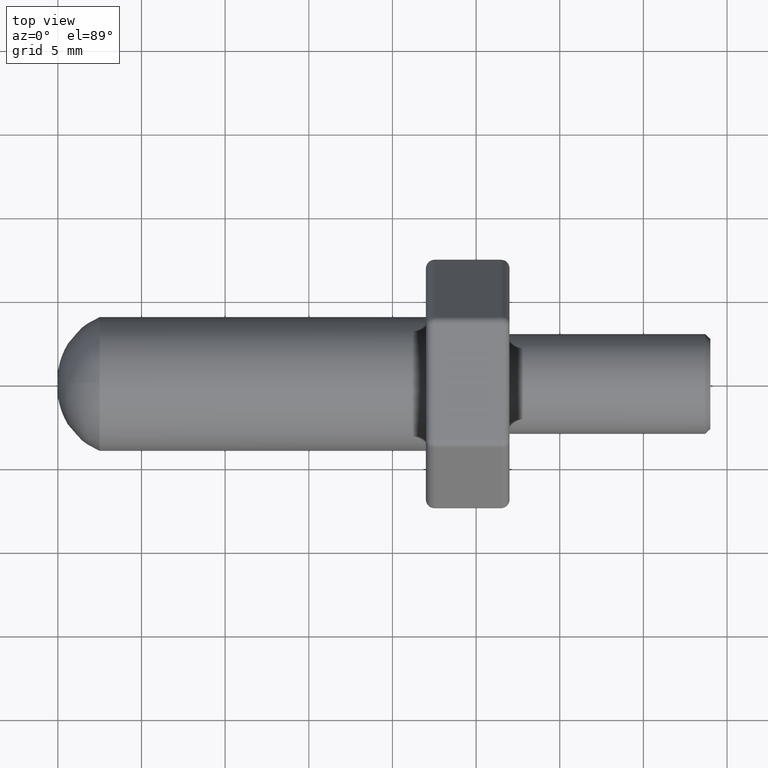
[diagram: clean part render]
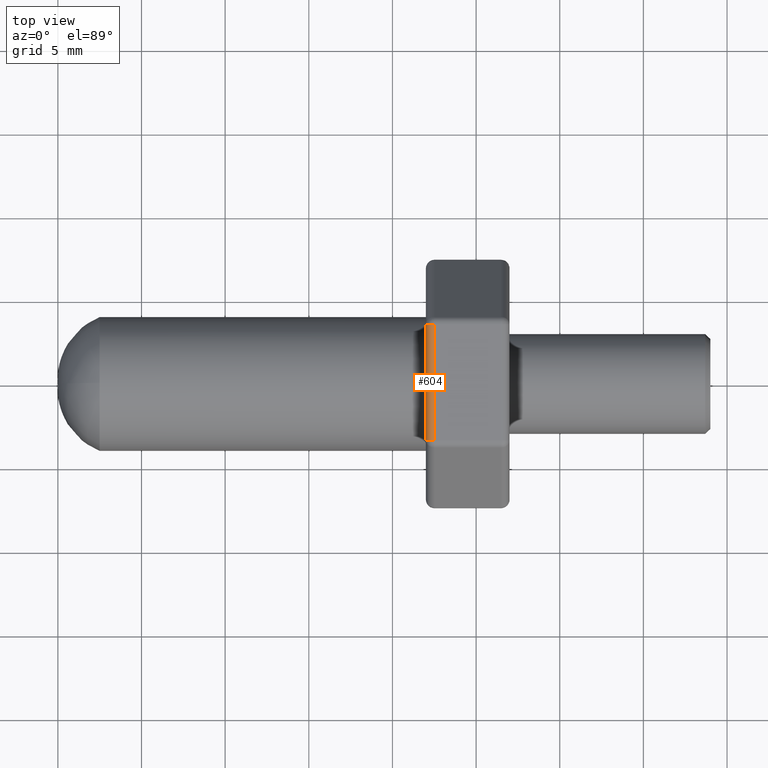
[diagram: same view with one face highlighted and labeled with its STEP entity id]
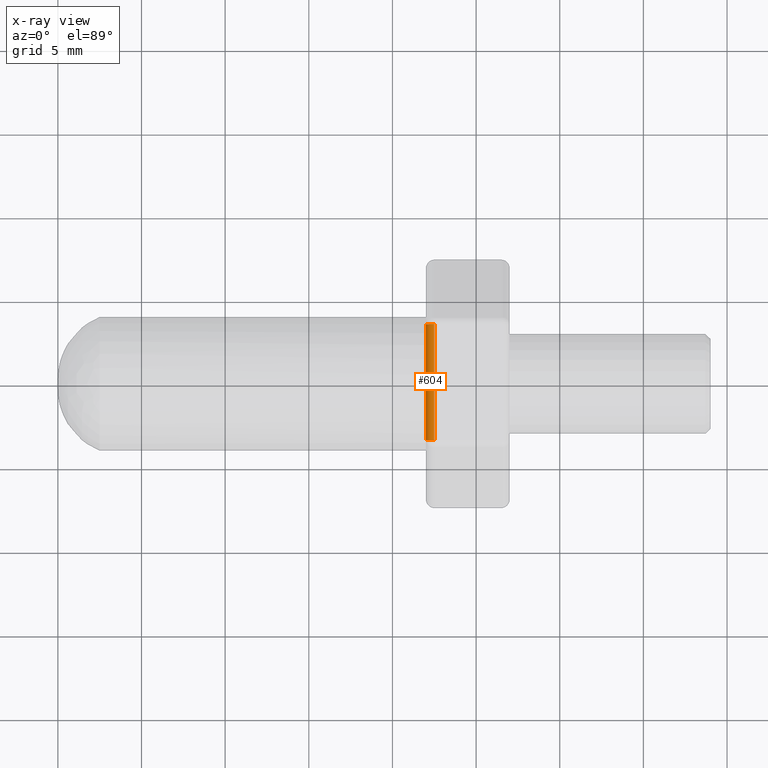
[diagram: x-ray of the same camera — body ghosted, the highlighted face saturated]
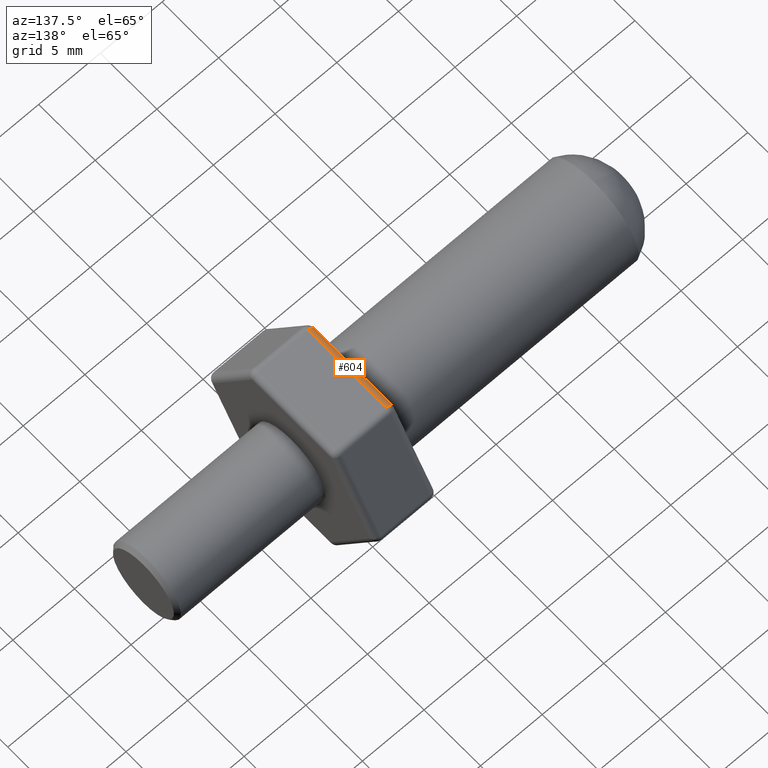
[diagram: same view with one face highlighted and labeled with its STEP entity id]
A machine part, top view. The second image highlights one B-rep face of the part: STEP entity #604.
The next image is the same camera in x-ray: the body ghosted, the highlighted face saturated — about 0% of this face is hidden behind the body in this view.
A second angle (auxiliary view) of the same face is appended — the face is thin or edge-on in the first view.
In plain terms, the highlighted cylindrical surface (edge-blend (fillet) strip) has radius 0.5 mm, axis along (0, 1, 0).
Its self-contained STEP definition (entity closure, byte-faithful):
#57=LINE('',#1065,#96);
#63=LINE('',#1080,#102);
#96=VECTOR('',#881,10.);
#102=VECTOR('',#903,10.);
#123=CYLINDRICAL_SURFACE('',#704,0.5);
#162=FACE_OUTER_BOUND('',#206,.T.);
#206=EDGE_LOOP('',(#523,#524,#525,#526));
#244=CIRCLE('',#685,0.5);
#248=CIRCLE('',#694,0.5);
#290=VERTEX_POINT('',#1039);
#291=VERTEX_POINT('',#1044);
#293=VERTEX_POINT('',#1057);
#294=VERTEX_POINT('',#1061);
#359=EDGE_CURVE('',#291,#290,#244,.T.);
#367=EDGE_CURVE('',#293,#294,#248,.T.);
#369=EDGE_CURVE('',#293,#290,#57,.T.);
#376=EDGE_CURVE('',#291,#294,#63,.T.);
#523=ORIENTED_EDGE('',*,*,#359,.F.);
#524=ORIENTED_EDGE('',*,*,#376,.T.);
#525=ORIENTED_EDGE('',*,*,#367,.F.);
#526=ORIENTED_EDGE('',*,*,#369,.T.);
#604=ADVANCED_FACE('',(#162),#123,.T.);
#685=AXIS2_PLACEMENT_3D('',#1046,#853,#854);
#694=AXIS2_PLACEMENT_3D('',#1062,#875,#876);
#704=AXIS2_PLACEMENT_3D('',#1079,#901,#902);
#853=DIRECTION('center_axis',(0.,1.,2.95840413289779E-16));
#854=DIRECTION('ref_axis',(-0.707106781186546,0.,0.707106781186549));
#875=DIRECTION('center_axis',(0.,-1.,-2.95840413289779E-16));
#876=DIRECTION('ref_axis',(-0.707106781186546,0.,0.707106781186549));
#881=DIRECTION('',(0.,1.,2.95840413289779E-16));
#901=DIRECTION('center_axis',(0.,1.,2.95840413289779E-16));
#902=DIRECTION('ref_axis',(-0.707106781186546,0.,0.707106781186549));
#903=DIRECTION('',(0.,-1.,-2.95840413289779E-16));
#1039=CARTESIAN_POINT('',(22.5,3.46410161513775,6.5));
#1044=CARTESIAN_POINT('',(22.,3.46410161513775,6.));
#1046=CARTESIAN_POINT('Origin',(22.5,3.46410161513775,6.));
#1057=CARTESIAN_POINT('',(22.5,-3.46410161513776,6.5));
#1061=CARTESIAN_POINT('',(22.,-3.46410161513776,6.));
#1062=CARTESIAN_POINT('Origin',(22.5,-3.46410161513776,6.));
#1065=CARTESIAN_POINT('',(22.5,1.87638837486628,6.5));
#1079=CARTESIAN_POINT('Origin',(22.5,1.87638837486628,6.));
#1080=CARTESIAN_POINT('',(22.,1.87638837486628,6.));